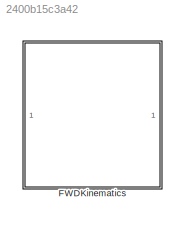
MODEL slx_2400b15c3a42
KIND model
CONFIG AbsTol = auto
CONFIG EnableMultiTasking = off
CONFIG FixedStep = dt
CONFIG MaxStep = auto
CONFIG MinStep = auto
CONFIG RelTol = 1e-3
CONFIG SampleTimeConstraint = Unconstrained
CONFIG Solver = FixedStepAuto
CONFIG SolverName = FixedStepAuto
CONFIG StartTime = 0.0
CONFIG StopTime = t_final
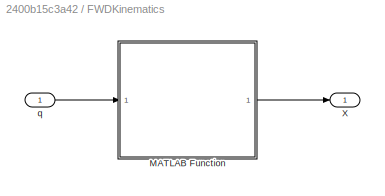
BLOCK [SubSystem] FWDKinematics
  Ports = [1, 1]
  RequestExecContextInheritance = off
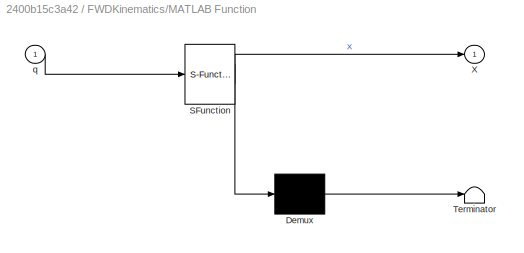
BLOCK [SubSystem] FWDKinematics/MATLAB Function
  ErrorFcn = Stateflow.Translate.translate
  PermitHierarchicalResolution = ExplicitOnly
  Ports = [1, 1]
  RequestExecContextInheritance = off
  SFBlockType = MATLAB Function
  TreatAsAtomicUnit = on
BLOCK [Demux] FWDKinematics/MATLAB Function/ Demux 
  Outputs = 1
  Ports = [1, 1]
BLOCK [S-Function] FWDKinematics/MATLAB Function/ SFunction 
  EnableBusSupport = on
  FunctionName = sf_sfun
  PortCounts = [1 2]
  Ports = [1, 2]
  SFcnIsStateOwnerBlock = off
  SFunctionDeploymentMode = off
  Tag = Stateflow S-Function 1
BLOCK [Terminator] FWDKinematics/MATLAB Function/ Terminator 
BLOCK [Outport] FWDKinematics/MATLAB Function/X
BLOCK [Inport] FWDKinematics/MATLAB Function/q
BLOCK [Outport] FWDKinematics/X
BLOCK [Inport] FWDKinematics/q
LINE FWDKinematics/MATLAB Function:1 -> FWDKinematics/X:1
LINE FWDKinematics/q:1 -> FWDKinematics/MATLAB Function:1
CHART FWDKinematics/MATLAB Function states=1 transitions=1
  STATE_LABEL 'eML_blk_kernel()'
  STATE_LABEL 'SCRIPT:\nfunction X = FWDKinematics(q)\n%%% Forward Kinematic Function\n\n\n%% Joint Space variables\n% q is 3*1 vector of joint variables (radian), q = [q1;q2;q3]\nq1 = q(1);\nq2 = q(2);\nq3 = q(3);\n\n%% general physical parameters\nl1 = 0.6731;\nl2 = 0.432;\nl3 = 0.434;\nlc2 = 0.216;\nlc3 = 0.164;\n\n%% Forward Kinematic\n% X is 3*1 vecto of end-effector position in task space, X = [x;y;z]\n\nx = cos(q1) * (l2 * co...<+134ch>'
CHART  states=0 transitions=0
